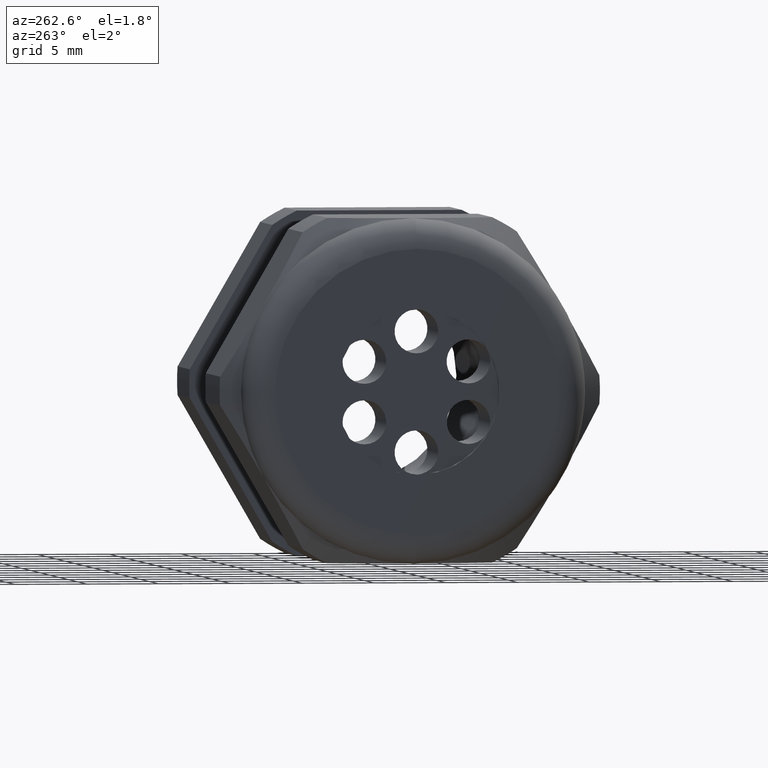
[diagram: clean part render]
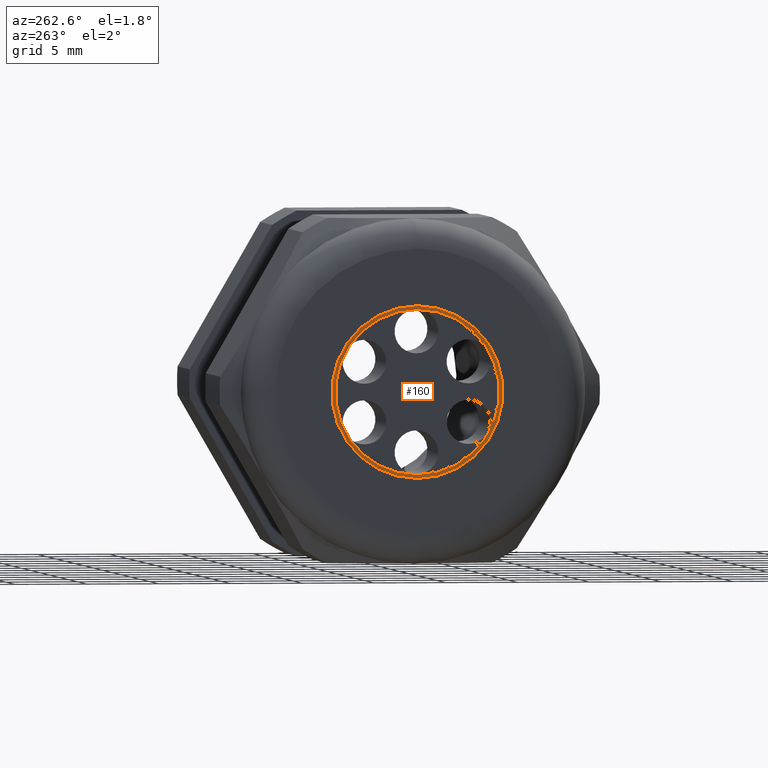
[diagram: same view with one face highlighted and labeled with its STEP entity id]
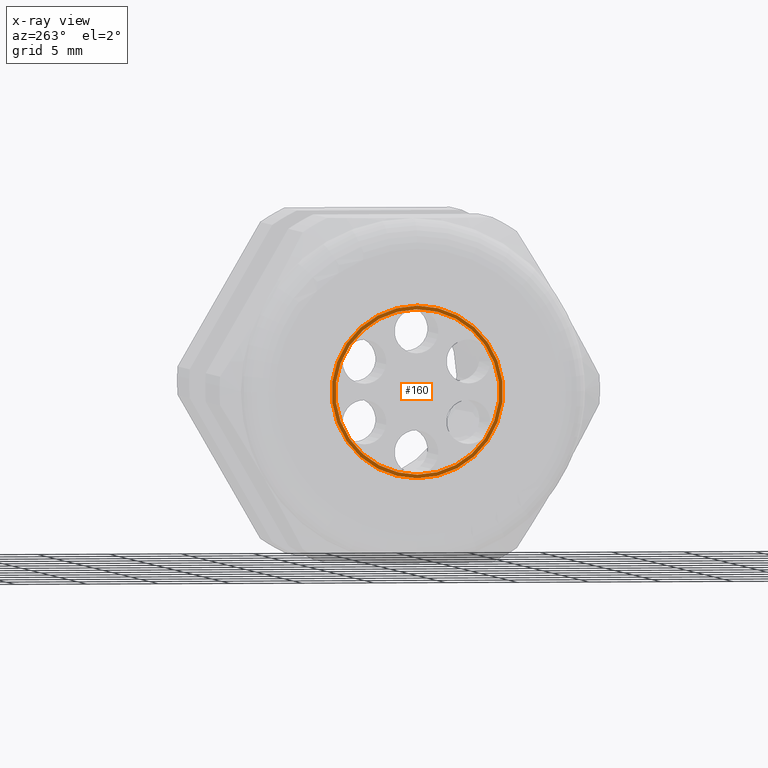
[diagram: x-ray of the same camera — body ghosted, the highlighted face saturated]
A machine part, auxiliary view. The second image highlights one B-rep face of the part: STEP entity #160.
The next image is the same camera in x-ray: the body ghosted, the highlighted face saturated — about 0% of this face is hidden behind the body in this view.
In plain terms, the highlighted planar face has unit normal (-1, 0, 0).
Its self-contained STEP definition (entity closure, byte-faithful):
#112 = ORIENTED_EDGE ( 'NONE', *, *, #5106, .T. ) ;
#118 = ORIENTED_EDGE ( 'NONE', *, *, #5090, .T. ) ;
#120 = ORIENTED_EDGE ( 'NONE', *, *, #5095, .F. ) ;
#160 = ADVANCED_FACE ( 'NONE', ( #4696, #4695 ), #4694, .T. ) ;
#178 = EDGE_LOOP ( 'NONE', ( #5136, #120 ) ) ;
#737 = CARTESIAN_POINT ( 'NONE',  ( -1.370000000000000100, 0.0000000000000000000, 0.2249999999999999800 ) ) ;
#738 = CARTESIAN_POINT ( 'NONE',  ( -1.370000000000000100, 2.755455298081544500E-017, -0.2249999999999999800 ) ) ;
#834 = CARTESIAN_POINT ( 'NONE',  ( -1.370000000000000100, 2.877919977996279800E-017, -0.2349999999999999900 ) ) ;
#2903 = DIRECTION ( 'NONE',  ( 0.0000000000000000000, 0.0000000000000000000, 1.000000000000000000 ) ) ;
#2904 = DIRECTION ( 'NONE',  ( -1.000000000000000000, 0.0000000000000000000, 0.0000000000000000000 ) ) ;
#2905 = CARTESIAN_POINT ( 'NONE',  ( -1.370000000000000100, 0.0000000000000000000, 0.0000000000000000000 ) ) ;
#2906 = AXIS2_PLACEMENT_3D ( 'NONE', #2905, #2904, #2903 ) ;
#2907 = CIRCLE ( 'NONE', #2906, 0.2349999999999999900 ) ;
#2938 = DIRECTION ( 'NONE',  ( 0.0000000000000000000, 0.0000000000000000000, 1.000000000000000000 ) ) ;
#2939 = DIRECTION ( 'NONE',  ( -1.000000000000000000, 0.0000000000000000000, 0.0000000000000000000 ) ) ;
#2940 = AXIS2_PLACEMENT_3D ( 'NONE', #2946, #2939, #2938 ) ;
#2941 = CIRCLE ( 'NONE', #2940, 0.2349999999999999900 ) ;
#2946 = CARTESIAN_POINT ( 'NONE',  ( -1.370000000000000100, 0.0000000000000000000, 0.0000000000000000000 ) ) ;
#2955 = CARTESIAN_POINT ( 'NONE',  ( -1.370000000000000100, 0.0000000000000000000, 0.2349999999999999900 ) ) ;
#2956 = DIRECTION ( 'NONE',  ( 0.0000000000000000000, 0.0000000000000000000, 1.000000000000000000 ) ) ;
#2957 = DIRECTION ( 'NONE',  ( -1.000000000000000000, 0.0000000000000000000, 0.0000000000000000000 ) ) ;
#2958 = CARTESIAN_POINT ( 'NONE',  ( -1.370000000000000100, 0.0000000000000000000, 0.0000000000000000000 ) ) ;
#2959 = AXIS2_PLACEMENT_3D ( 'NONE', #2958, #2957, #2956 ) ;
#2963 = CIRCLE ( 'NONE', #2959, 0.2249999999999999800 ) ;
#3030 = DIRECTION ( 'NONE',  ( 0.0000000000000000000, 0.0000000000000000000, 1.000000000000000000 ) ) ;
#3031 = DIRECTION ( 'NONE',  ( -1.000000000000000000, 0.0000000000000000000, 0.0000000000000000000 ) ) ;
#3032 = CARTESIAN_POINT ( 'NONE',  ( -1.370000000000000100, 0.0000000000000000000, 0.0000000000000000000 ) ) ;
#3033 = AXIS2_PLACEMENT_3D ( 'NONE', #3032, #3031, #3030 ) ;
#3034 = CIRCLE ( 'NONE', #3033, 0.2249999999999999800 ) ;
#3370 = VERTEX_POINT ( 'NONE', #738 ) ;
#3371 = VERTEX_POINT ( 'NONE', #737 ) ;
#3421 = VERTEX_POINT ( 'NONE', #834 ) ;
#4690 = DIRECTION ( 'NONE',  ( 0.0000000000000000000, 0.0000000000000000000, 1.000000000000000000 ) ) ;
#4691 = DIRECTION ( 'NONE',  ( -1.000000000000000000, 0.0000000000000000000, 0.0000000000000000000 ) ) ;
#4692 = CARTESIAN_POINT ( 'NONE',  ( -1.370000000000000100, 0.0000000000000000000, 0.0000000000000000000 ) ) ;
#4693 = AXIS2_PLACEMENT_3D ( 'NONE', #4692, #4691, #4690 ) ;
#4694 = PLANE ( 'NONE',  #4693 ) ;
#4695 = FACE_OUTER_BOUND ( 'NONE', #5122, .T. ) ;
#4696 = FACE_BOUND ( 'NONE', #178, .T. ) ;
#5090 = EDGE_CURVE ( 'NONE', #5098, #3421, #2907, .T. ) ;
#5095 = EDGE_CURVE ( 'NONE', #3370, #3371, #2963, .T. ) ;
#5098 = VERTEX_POINT ( 'NONE', #2955 ) ;
#5106 = EDGE_CURVE ( 'NONE', #3421, #5098, #2941, .T. ) ;
#5122 = EDGE_LOOP ( 'NONE', ( #118, #112 ) ) ;
#5125 = EDGE_CURVE ( 'NONE', #3371, #3370, #3034, .T. ) ;
#5136 = ORIENTED_EDGE ( 'NONE', *, *, #5125, .F. ) ;